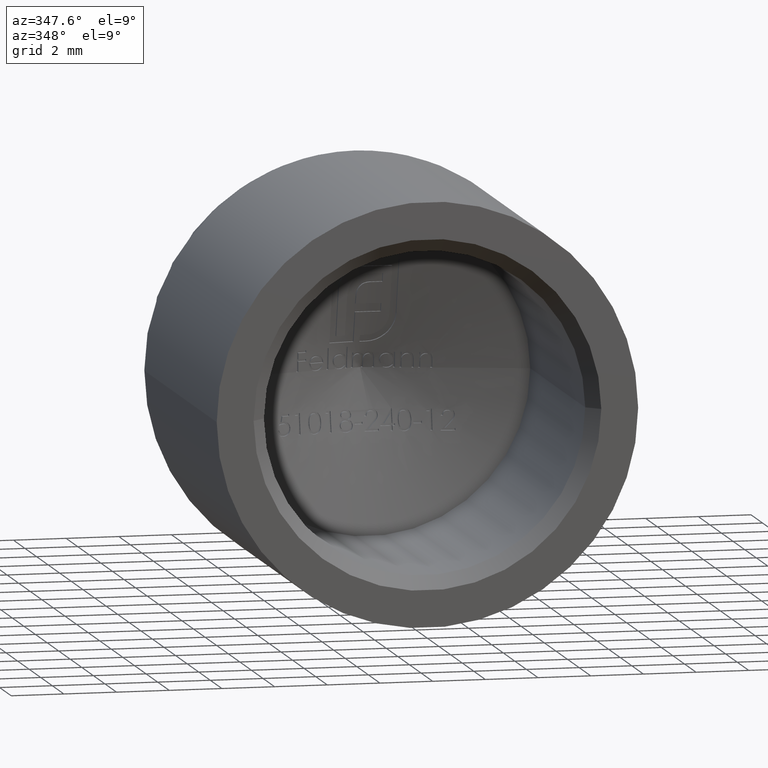
[diagram: clean part render]
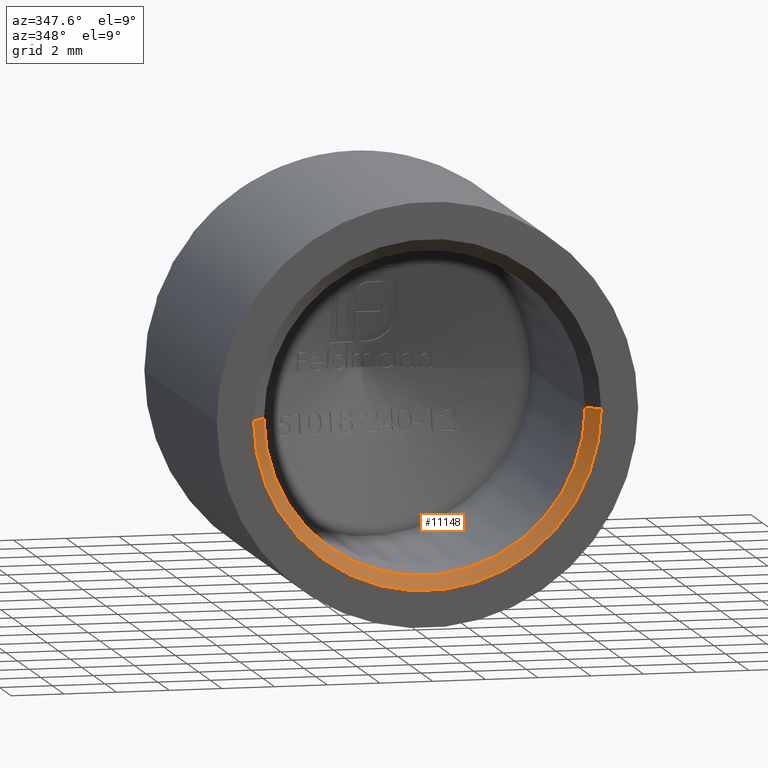
[diagram: same view with one face highlighted and labeled with its STEP entity id]
A machine part, auxiliary view. The second image highlights one B-rep face of the part: STEP entity #11148.
In plain terms, the highlighted conical surface has half-angle 45 deg.
Its self-contained STEP definition (entity closure, byte-faithful):
#133 = CIRCLE ( 'NONE', #13910, 6.099999999999999645 ) ;
#278 = CARTESIAN_POINT ( 'NONE',  ( -6.600000000000001421, -2.543256140501903027E-16, 8.082668874372533978E-16 ) ) ;
#587 = CARTESIAN_POINT ( 'NONE',  ( 6.099999999999999645, 0.4999999999999987232, 0.000000000000000000 ) ) ;
#962 = CARTESIAN_POINT ( 'NONE',  ( -6.099999999999999645, 0.4999999999999987232, 7.470345474798854293E-16 ) ) ;
#1125 = CONICAL_SURFACE ( 'NONE', #4117, 6.099999999999999645, 0.7853981633974518317 ) ;
#1229 = DIRECTION ( 'NONE',  ( -0.7071067811865500152, -0.7071067811865450192, 8.659560562354963673E-17 ) ) ;
#1399 = ORIENTED_EDGE ( 'NONE', *, *, #7317, .F. ) ;
#1545 = DIRECTION ( 'NONE',  ( 2.201345846305856848E-18, -1.000000000000000000, 0.000000000000000000 ) ) ;
#2241 = DIRECTION ( 'NONE',  ( 2.201345846305856848E-18, -1.000000000000000000, 0.000000000000000000 ) ) ;
#2739 = EDGE_CURVE ( 'NONE', #10062, #10204, #9884, .T. ) ;
#3296 = CARTESIAN_POINT ( 'NONE',  ( 3.191951477143492738E-17, 0.4999999999999987232, 0.000000000000000000 ) ) ;
#3390 = CARTESIAN_POINT ( 'NONE',  ( -6.099999999999999645, 0.4999999999999987232, 7.470345474798854293E-16 ) ) ;
#4006 = DIRECTION ( 'NONE',  ( 1.000000000000000000, 2.201345846305852997E-18, 0.000000000000000000 ) ) ;
#4117 = AXIS2_PLACEMENT_3D ( 'NONE', #12657, #1545, #6023 ) ;
#4246 = VECTOR ( 'NONE', #1229, 1000.000000000000000 ) ;
#5672 = VECTOR ( 'NONE', #9394, 1000.000000000000000 ) ;
#5789 = FACE_OUTER_BOUND ( 'NONE', #9873, .T. ) ;
#5862 = EDGE_CURVE ( 'NONE', #8572, #10062, #8652, .T. ) ;
#6023 = DIRECTION ( 'NONE',  ( 1.000000000000000000, 0.000000000000000000, 0.000000000000000000 ) ) ;
#7317 = EDGE_CURVE ( 'NONE', #13173, #8572, #133, .T. ) ;
#7335 = EDGE_CURVE ( 'NONE', #13173, #10204, #14112, .T. ) ;
#7659 = ORIENTED_EDGE ( 'NONE', *, *, #2739, .F. ) ;
#8572 = VERTEX_POINT ( 'NONE', #587 ) ;
#8652 = LINE ( 'NONE', #11676, #5672 ) ;
#9394 = DIRECTION ( 'NONE',  ( 0.7071067811865500152, -0.7071067811865450192, 0.000000000000000000 ) ) ;
#9563 = ORIENTED_EDGE ( 'NONE', *, *, #5862, .F. ) ;
#9873 = EDGE_LOOP ( 'NONE', ( #1399, #13863, #7659, #9563 ) ) ;
#9884 = CIRCLE ( 'NONE', #10934, 6.600000000000001421 ) ;
#9987 = DIRECTION ( 'NONE',  ( 1.000000000000000000, 0.000000000000000000, 0.000000000000000000 ) ) ;
#10029 = CARTESIAN_POINT ( 'NONE',  ( 6.600000000000001421, -2.543256140501903027E-16, 0.000000000000000000 ) ) ;
#10062 = VERTEX_POINT ( 'NONE', #10029 ) ;
#10204 = VERTEX_POINT ( 'NONE', #278 ) ;
#10415 = CARTESIAN_POINT ( 'NONE',  ( 3.302018769458785273E-17, -2.543256140501903027E-16, 0.000000000000000000 ) ) ;
#10934 = AXIS2_PLACEMENT_3D ( 'NONE', #10415, #11544, #4006 ) ;
#11148 = ADVANCED_FACE ( 'NONE', ( #5789 ), #1125, .F. ) ;
#11544 = DIRECTION ( 'NONE',  ( -2.201345846305856848E-18, 1.000000000000000000, 0.000000000000000000 ) ) ;
#11676 = CARTESIAN_POINT ( 'NONE',  ( 6.099999999999999645, 0.4999999999999987232, 0.000000000000000000 ) ) ;
#12657 = CARTESIAN_POINT ( 'NONE',  ( 3.191951477143492738E-17, 0.4999999999999987232, 0.000000000000000000 ) ) ;
#13173 = VERTEX_POINT ( 'NONE', #962 ) ;
#13863 = ORIENTED_EDGE ( 'NONE', *, *, #7335, .T. ) ;
#13910 = AXIS2_PLACEMENT_3D ( 'NONE', #3296, #2241, #9987 ) ;
#14112 = LINE ( 'NONE', #3390, #4246 ) ;